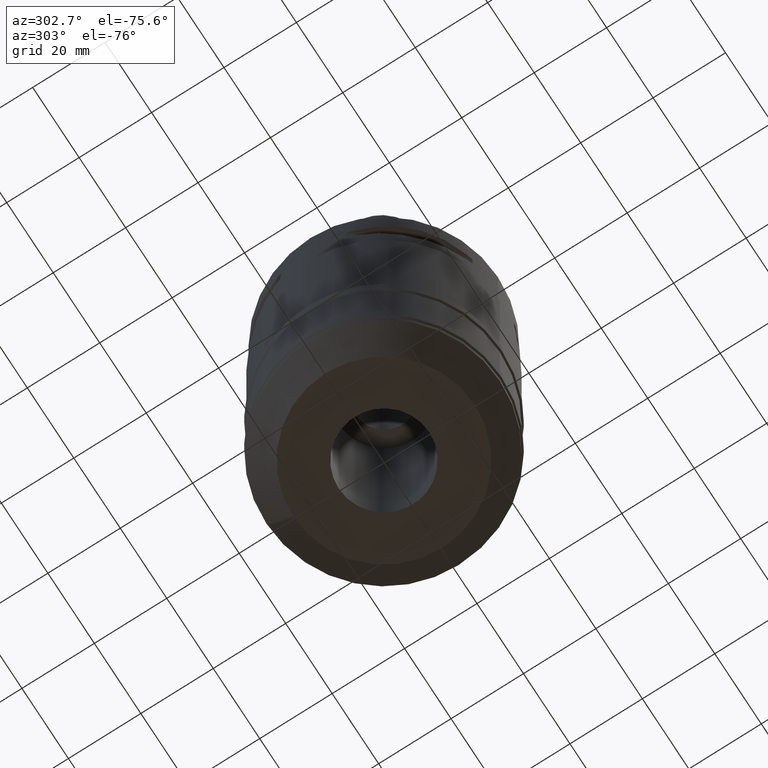
[diagram: clean part render]
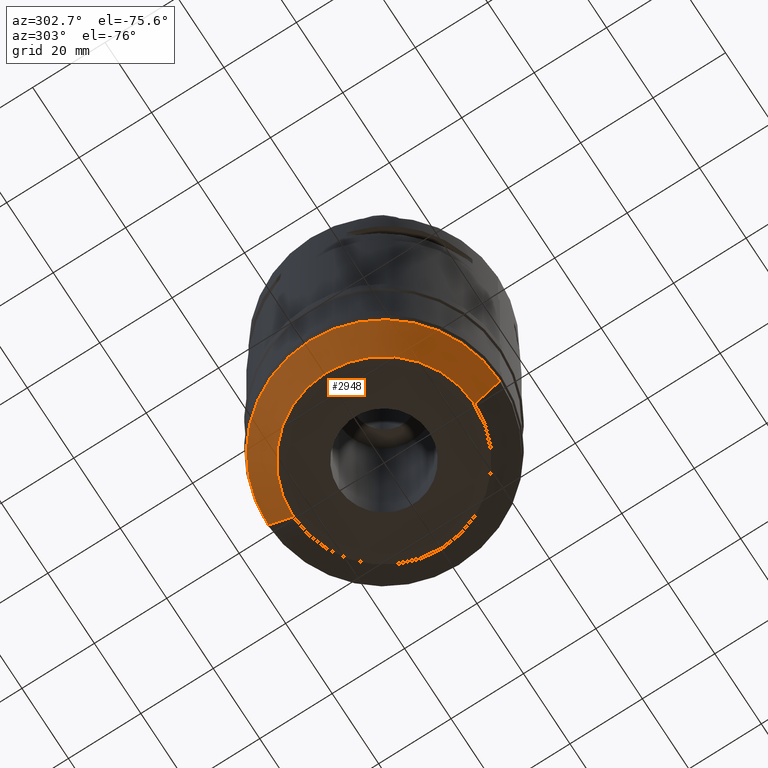
[diagram: same view with one face highlighted and labeled with its STEP entity id]
A machine part, auxiliary view. The second image highlights one B-rep face of the part: STEP entity #2948.
In plain terms, the highlighted conical surface has half-angle 45 deg.
Its self-contained STEP definition (entity closure, byte-faithful):
#848=DIRECTION('',(0.E0,-7.071067811865E-1,-7.071067811865E-1));
#849=VECTOR('',#848,9.899494936612E0);
#850=CARTESIAN_POINT('',(0.E0,3.2E1,-9.8E1));
#851=LINE('',#850,#849);
#863=CARTESIAN_POINT('',(0.E0,0.E0,-9.8E1));
#864=DIRECTION('',(0.E0,0.E0,1.E0));
#865=DIRECTION('',(0.E0,1.E0,0.E0));
#866=AXIS2_PLACEMENT_3D('',#863,#864,#865);
#871=DIRECTION('',(0.E0,7.071067811865E-1,-7.071067811865E-1));
#872=VECTOR('',#871,9.899494936612E0);
#873=CARTESIAN_POINT('',(0.E0,-3.2E1,-9.8E1));
#874=LINE('',#873,#872);
#886=CARTESIAN_POINT('',(0.E0,0.E0,-1.05E2));
#887=DIRECTION('',(0.E0,0.E0,1.E0));
#888=DIRECTION('',(0.E0,1.E0,0.E0));
#889=AXIS2_PLACEMENT_3D('',#886,#887,#888);
#1782=CARTESIAN_POINT('',(0.E0,3.2E1,-9.8E1));
#1783=VERTEX_POINT('',#1782);
#1784=CARTESIAN_POINT('',(0.E0,-3.2E1,-9.8E1));
#1785=VERTEX_POINT('',#1784);
#1786=CARTESIAN_POINT('',(0.E0,2.5E1,-1.05E2));
#1787=VERTEX_POINT('',#1786);
#1788=CARTESIAN_POINT('',(0.E0,-2.5E1,-1.05E2));
#1789=VERTEX_POINT('',#1788);
#2936=CARTESIAN_POINT('',(0.E0,0.E0,-1.015E2));
#2937=DIRECTION('',(0.E0,0.E0,1.E0));
#2938=DIRECTION('',(0.E0,1.E0,0.E0));
#2939=AXIS2_PLACEMENT_3D('',#2936,#2937,#2938);
#2940=CONICAL_SURFACE('',#2939,2.85E1,4.5E1);
#2941=ORIENTED_EDGE('',*,*,#2926,.F.);
#2942=ORIENTED_EDGE('',*,*,#2903,.T.);
#2943=ORIENTED_EDGE('',*,*,#2930,.T.);
#2945=ORIENTED_EDGE('',*,*,#2944,.F.);
#2946=EDGE_LOOP('',(#2941,#2942,#2943,#2945));
#2947=FACE_OUTER_BOUND('',#2946,.F.);
#867=CIRCLE('',#866,3.2E1);
#890=CIRCLE('',#889,2.5E1);
#2903=EDGE_CURVE('',#1783,#1785,#867,.T.);
#2926=EDGE_CURVE('',#1783,#1787,#851,.T.);
#2930=EDGE_CURVE('',#1785,#1789,#874,.T.);
#2944=EDGE_CURVE('',#1787,#1789,#890,.T.);
#2948=ADVANCED_FACE('',(#2947),#2940,.T.);